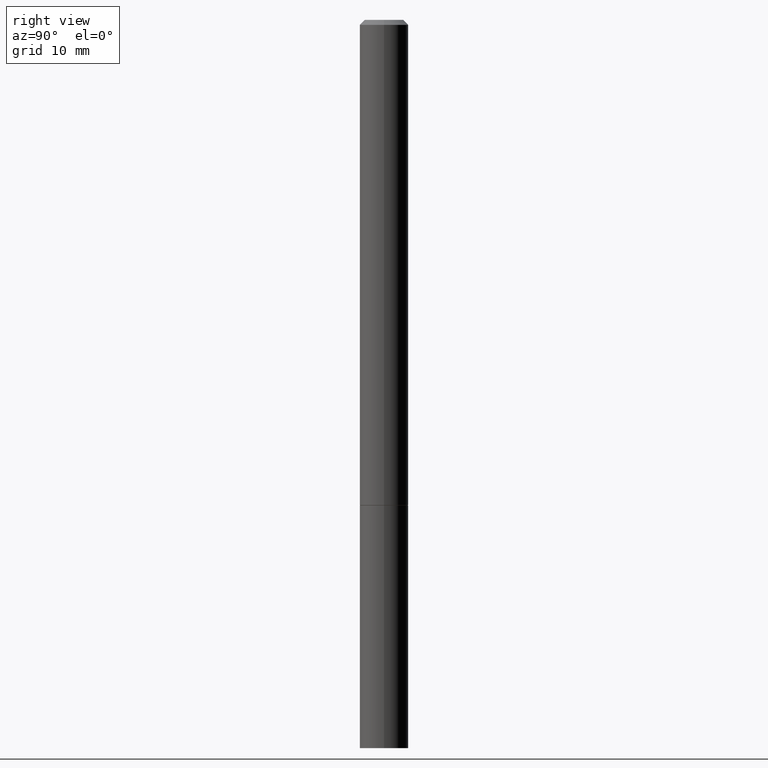
[diagram: clean part render]
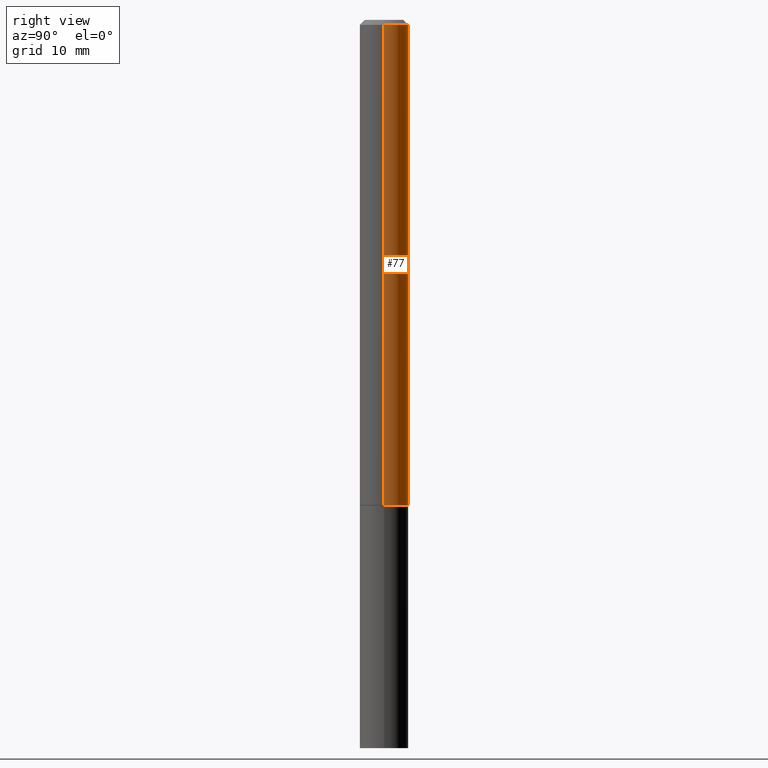
[diagram: same view with one face highlighted and labeled with its STEP entity id]
A machine part, right view. The second image highlights one B-rep face of the part: STEP entity #77.
In plain terms, the highlighted cylindrical surface (edge-blend (fillet) strip) has radius 2.5006 mm, axis along (-0, 0, 1).
Its self-contained STEP definition (entity closure, byte-faithful):
#3 = FACE_OUTER_BOUND ( 'NONE', #12, .T. ) ;
#12 = EDGE_LOOP ( 'NONE', ( #157, #45, #240, #177 ) ) ;
#15 = LINE ( 'NONE', #75, #28 ) ;
#16 = VERTEX_POINT ( 'NONE', #244 ) ;
#28 = VECTOR ( 'NONE', #74, 39.37007874015748143 ) ;
#30 = DIRECTION ( 'NONE',  ( -2.445468806185136597E-29, 3.491481338843145583E-15, 1.000000000000000000 ) ) ;
#40 = DIRECTION ( 'NONE',  ( -2.445468806185136877E-29, 3.491481338843145188E-15, 1.000000000000000000 ) ) ;
#41 = CIRCLE ( 'NONE', #362, 0.09844999999999999585 ) ;
#45 = ORIENTED_EDGE ( 'NONE', *, *, #339, .T. ) ;
#58 = VERTEX_POINT ( 'NONE', #92 ) ;
#69 = AXIS2_PLACEMENT_3D ( 'NONE', #176, #152, #284 ) ;
#74 = DIRECTION ( 'NONE',  ( -2.445468806185136877E-29, 3.491481338843145188E-15, 1.000000000000000000 ) ) ;
#75 = CARTESIAN_POINT ( 'NONE',  ( -0.09844999999999987095, 6.995293233558177160E-16, -4.842691596355948437E-30 ) ) ;
#77 = ADVANCED_FACE ( 'NONE', ( #3 ), #289, .T. ) ;
#88 = CIRCLE ( 'NONE', #69, 0.09844999999999973217 ) ;
#89 = DIRECTION ( 'NONE',  ( -2.445468806185136597E-29, 3.491481338843145583E-15, 1.000000000000000000 ) ) ;
#92 = CARTESIAN_POINT ( 'NONE',  ( 0.09844999999999973217, -7.452456546574684343E-16, -0.02000000000000002470 ) ) ;
#116 = EDGE_CURVE ( 'NONE', #128, #16, #41, .T. ) ;
#128 = VERTEX_POINT ( 'NONE', #256 ) ;
#152 = DIRECTION ( 'NONE',  ( -2.445468806185136597E-29, 3.491481338843145583E-15, 1.000000000000000000 ) ) ;
#157 = ORIENTED_EDGE ( 'NONE', *, *, #116, .T. ) ;
#159 = CARTESIAN_POINT ( 'NONE',  ( -0.09844999999999973217, 6.176430488413481772E-16, -0.02000000000000002470 ) ) ;
#171 = VECTOR ( 'NONE', #40, 39.37007874015748143 ) ;
#176 = CARTESIAN_POINT ( 'NONE',  ( 4.890937612370279289E-31, -6.982962677686299005E-17, -0.02000000000000002470 ) ) ;
#177 = ORIENTED_EDGE ( 'NONE', *, *, #328, .F. ) ;
#178 = AXIS2_PLACEMENT_3D ( 'NONE', #360, #30, #340 ) ;
#218 = EDGE_CURVE ( 'NONE', #58, #288, #88, .T. ) ;
#225 = CARTESIAN_POINT ( 'NONE',  ( 0.09844999999999987095, -6.874726756182120670E-16, 4.800596035771092908E-30 ) ) ;
#236 = CARTESIAN_POINT ( 'NONE',  ( 4.811459876169255671E-29, -6.869489534173887122E-15, -1.967499999999999805 ) ) ;
#240 = ORIENTED_EDGE ( 'NONE', *, *, #218, .F. ) ;
#244 = CARTESIAN_POINT ( 'NONE',  ( -0.09844999999999998197, -2.770130257119553156E-15, -1.967499999999999805 ) ) ;
#256 = CARTESIAN_POINT ( 'NONE',  ( 0.09844999999999999585, -7.556962209792099682E-15, -1.967499999999999805 ) ) ;
#284 = DIRECTION ( 'NONE',  ( 1.000000000000000000, -6.982962677686266711E-15, 0.000000000000000000 ) ) ;
#288 = VERTEX_POINT ( 'NONE', #159 ) ;
#289 = CYLINDRICAL_SURFACE ( 'NONE', #178, 0.09844999999999987095 ) ;
#328 = EDGE_CURVE ( 'NONE', #128, #58, #355, .T. ) ;
#339 = EDGE_CURVE ( 'NONE', #16, #288, #15, .T. ) ;
#340 = DIRECTION ( 'NONE',  ( 1.000000000000000000, -6.982962677686266711E-15, 4.876176775795936353E-29 ) ) ;
#346 = DIRECTION ( 'NONE',  ( 1.000000000000000000, -6.982962677686265922E-15, 0.000000000000000000 ) ) ;
#355 = LINE ( 'NONE', #225, #171 ) ;
#360 = CARTESIAN_POINT ( 'NONE',  ( 0.000000000000000000, 0.000000000000000000, 0.000000000000000000 ) ) ;
#362 = AXIS2_PLACEMENT_3D ( 'NONE', #236, #89, #346 ) ;